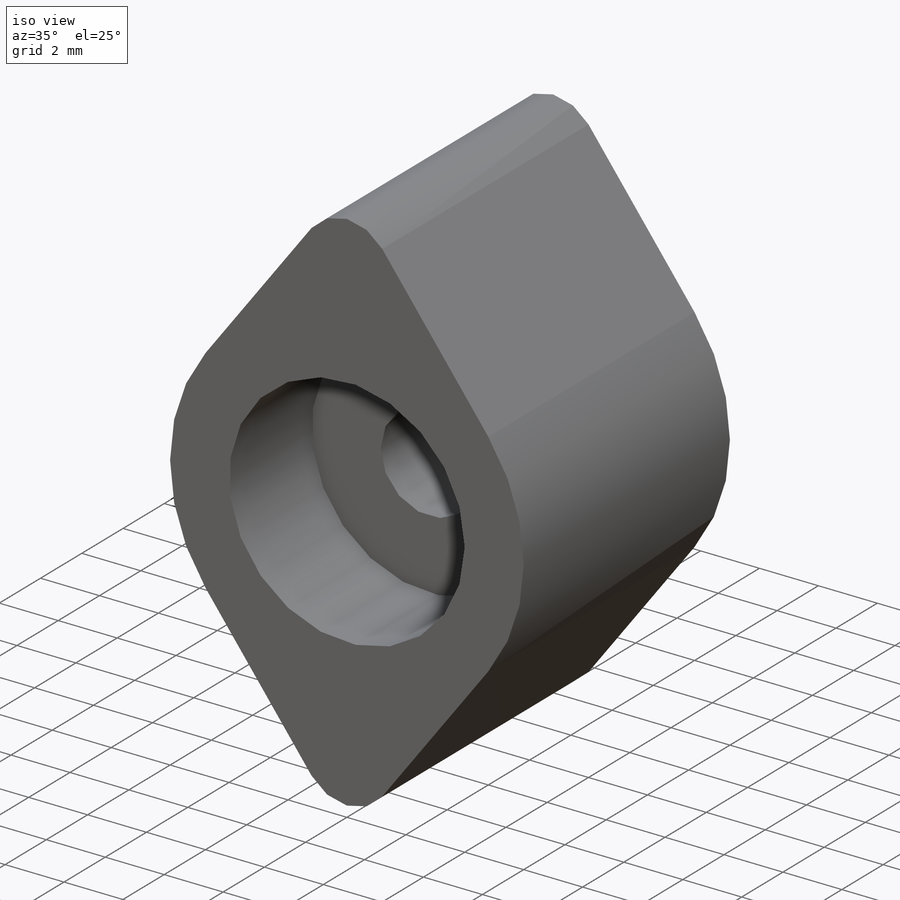
[diagram: iso view]
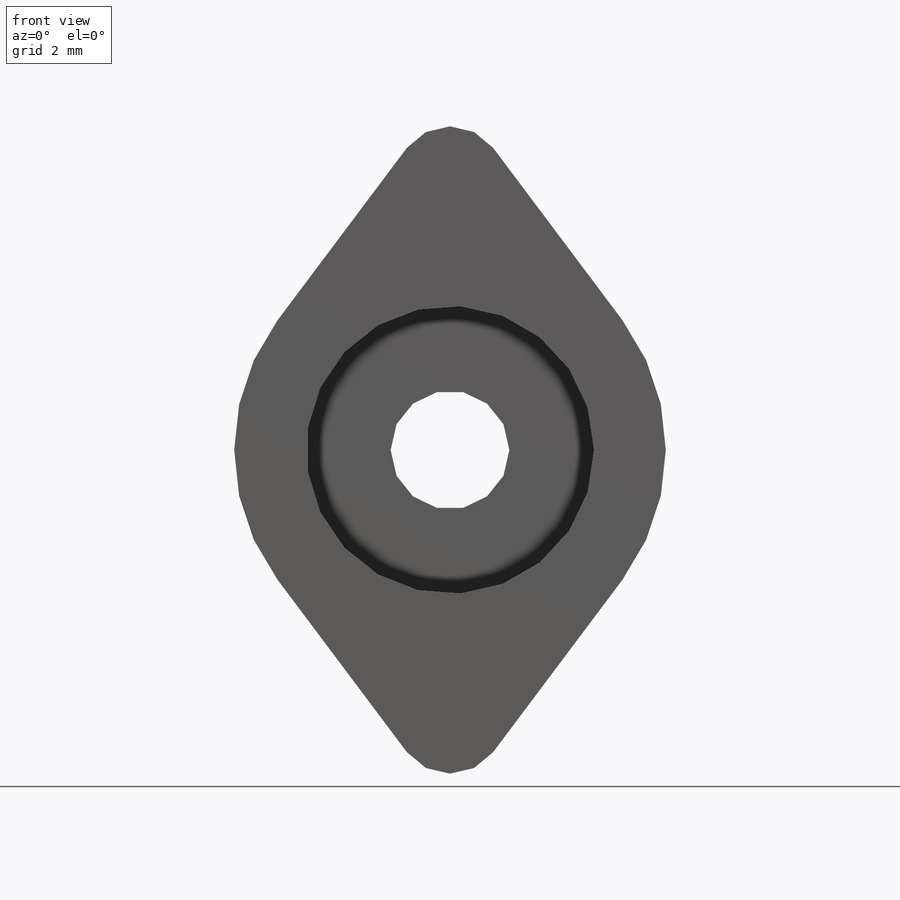
[diagram: front view]
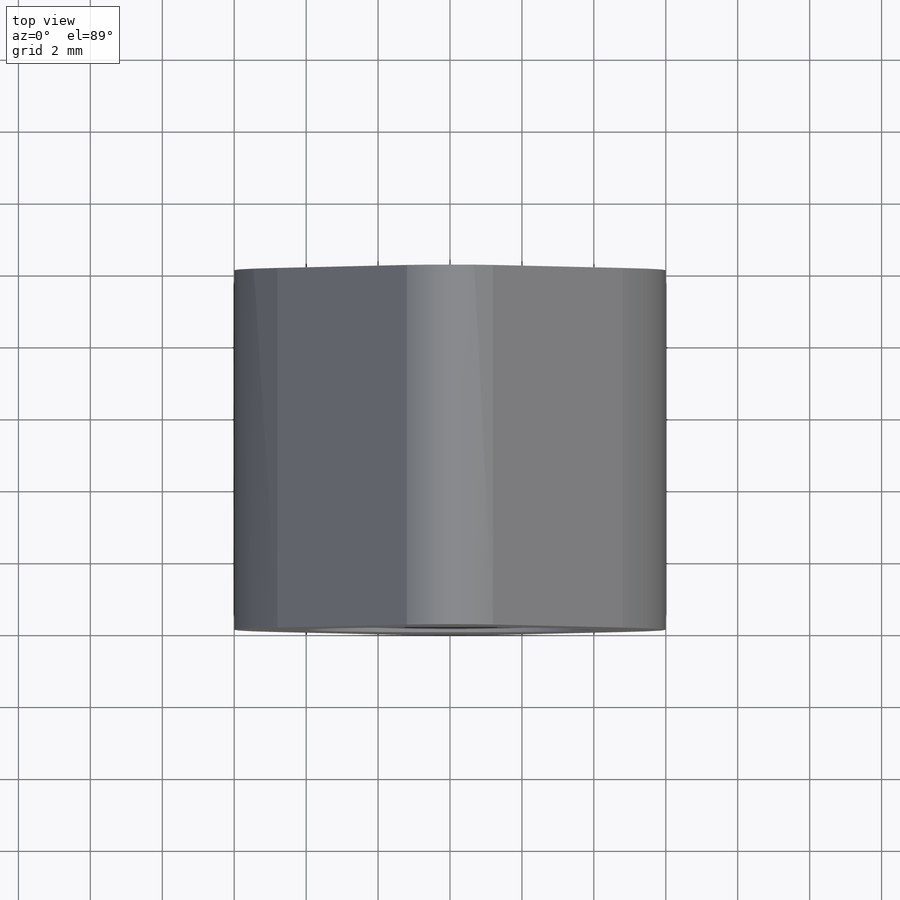
[diagram: top view]
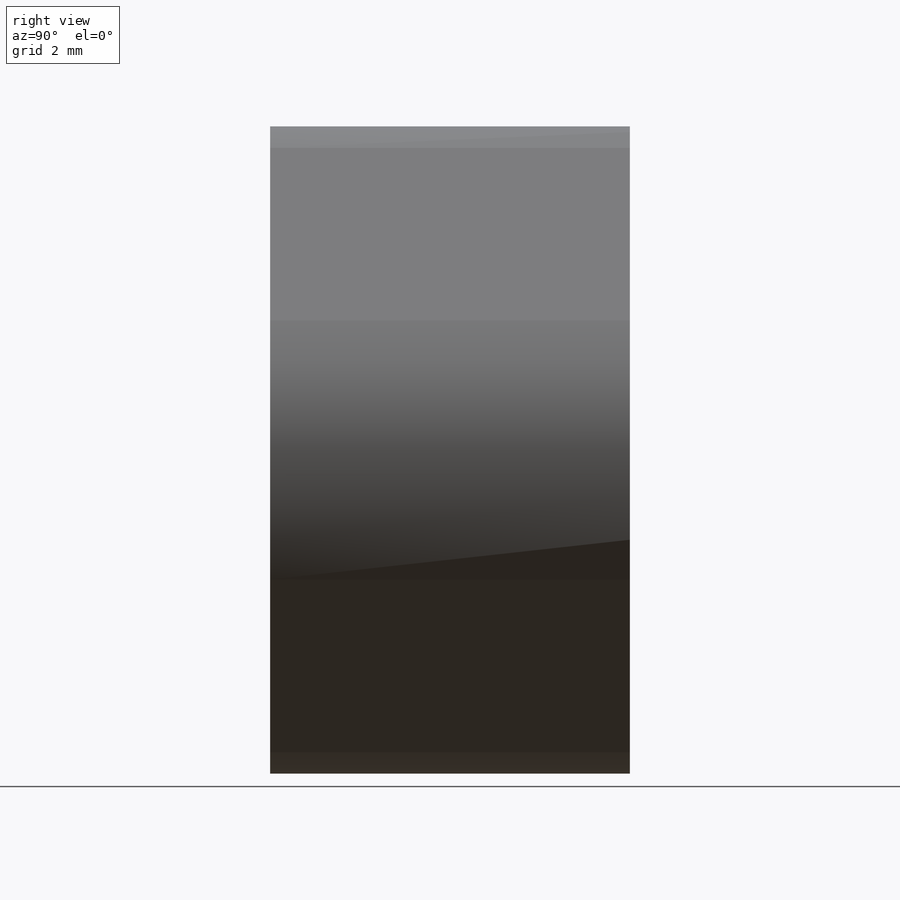
[diagram: right view]
SOLIDWORKS PART (.sldprt)
format: sldprt  version: not decoded by parser v0  size: 228,864 bytes
history: native  units: mm
features: plane x3, material x1, sketch x1, extrude x1, cut_extrude x1, hole x1, thread x1, fillet x1 + 3 further entries (+8 scaffold rows collapsed)
feature tree (21):
  scaffold x8  (default folders/planes/origin — collapsed)
  material  "Материал <не указан>"
  plane  "Спереди"
  plane  "Сверху"
  plane  "Справа"
  sketch  "Эскиз1"  dims[D1=12.0mm D2=10.0mm D3=10.0mm]
  extrude  "Бобышка-Вытянуть1"  Depth=10mm
  "Эскиз2"
  cut_extrude  "Вырез-Вытянуть1"  Depth=4mm
  hole  "Отверстие обработанное метчиком M4x0.71"  [1 undecoded]
  "Эскиз4"
  "Эскиз3"  4=25.4mm Диаметр проходного сверла=3.3mm Глубина проходного сверла=6mm
  thread  "Отверстие резьбы1"  Diameter=4mm  [1 undecoded]
  fillet  "Скругление1"  Radius=1.5mm
decode coverage: 5 of 6 modeling features carry decoded parameters; 3 rows unclassified (native names shown)
note: 2 parameter values undecoded
note: suppression state not decoded; provenance and decode notes live in map.json
